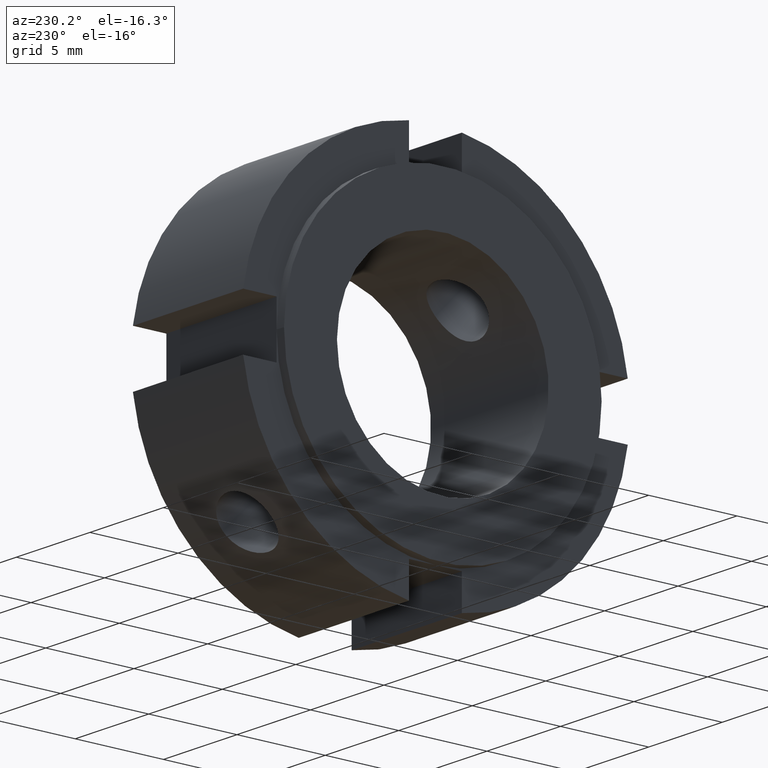
[diagram: clean part render]
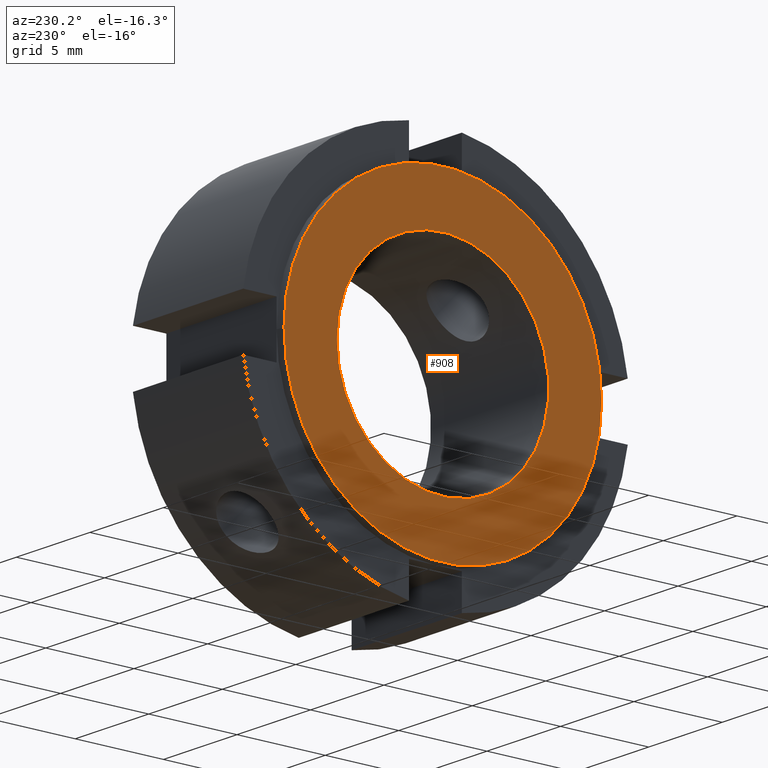
[diagram: same view with one face highlighted and labeled with its STEP entity id]
A machine part, auxiliary view. The second image highlights one B-rep face of the part: STEP entity #908.
In plain terms, the highlighted planar face has unit normal (-1, 0, 0).
Its self-contained STEP definition (entity closure, byte-faithful):
#881=CARTESIAN_POINT('',(-4.716433E-016,7.499999999999999,0.0));
#882=DIRECTION('',(-1.0,0.0,0.0));
#883=DIRECTION('',(0.0,0.0,1.0));
#884=AXIS2_PLACEMENT_3D('',#881,#882,#883);
#885=PLANE('',#884);
#886=CARTESIAN_POINT('',(0.0,8.999999999999996,0.0));
#887=VERTEX_POINT('',#886);
#888=CARTESIAN_POINT('',(0.0,0.0,0.0));
#889=DIRECTION('',(1.0,0.0,0.0));
#890=DIRECTION('',(0.0,1.0,0.0));
#891=AXIS2_PLACEMENT_3D('',#888,#889,#890);
#892=CIRCLE('',#891,8.999999999999996);
#893=EDGE_CURVE('',#887,#887,#892,.T.);
#894=ORIENTED_EDGE('',*,*,#893,.F.);
#895=EDGE_LOOP('',(#894));
#896=FACE_OUTER_BOUND('',#895,.T.);
#897=CARTESIAN_POINT('',(-9.432867E-016,6.000000000000001,0.0));
#898=VERTEX_POINT('',#897);
#899=CARTESIAN_POINT('',(-9.432559E-016,0.0,0.0));
#900=DIRECTION('',(1.0,0.0,0.0));
#901=DIRECTION('',(0.0,1.0,0.0));
#902=AXIS2_PLACEMENT_3D('',#899,#900,#901);
#903=CIRCLE('',#902,6.000000000000001);
#904=EDGE_CURVE('',#898,#898,#903,.T.);
#905=ORIENTED_EDGE('',*,*,#904,.T.);
#906=EDGE_LOOP('',(#905));
#907=FACE_BOUND('',#906,.T.);
#908=ADVANCED_FACE('',(#896,#907),#885,.T.);